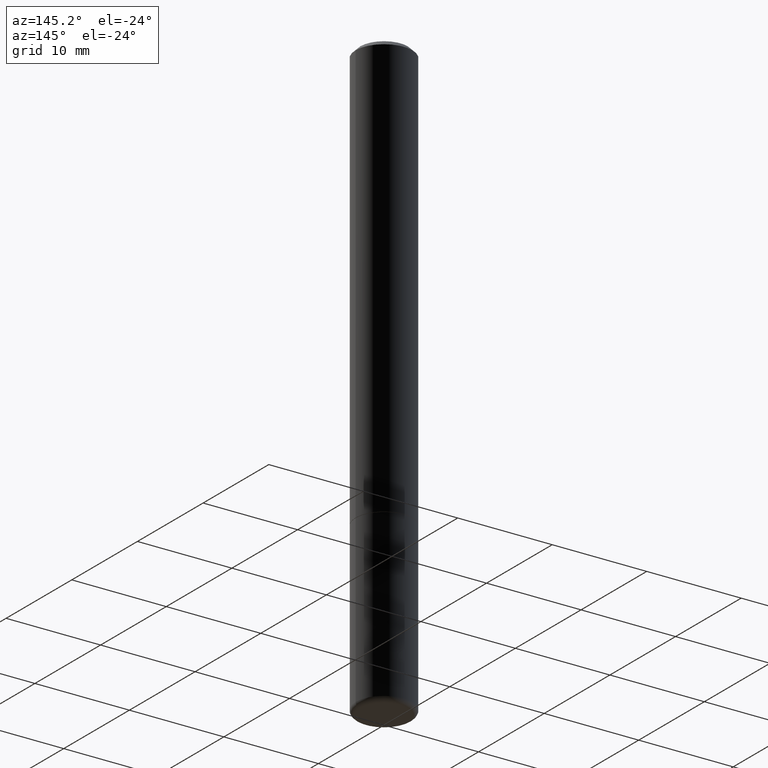
[diagram: clean part render]
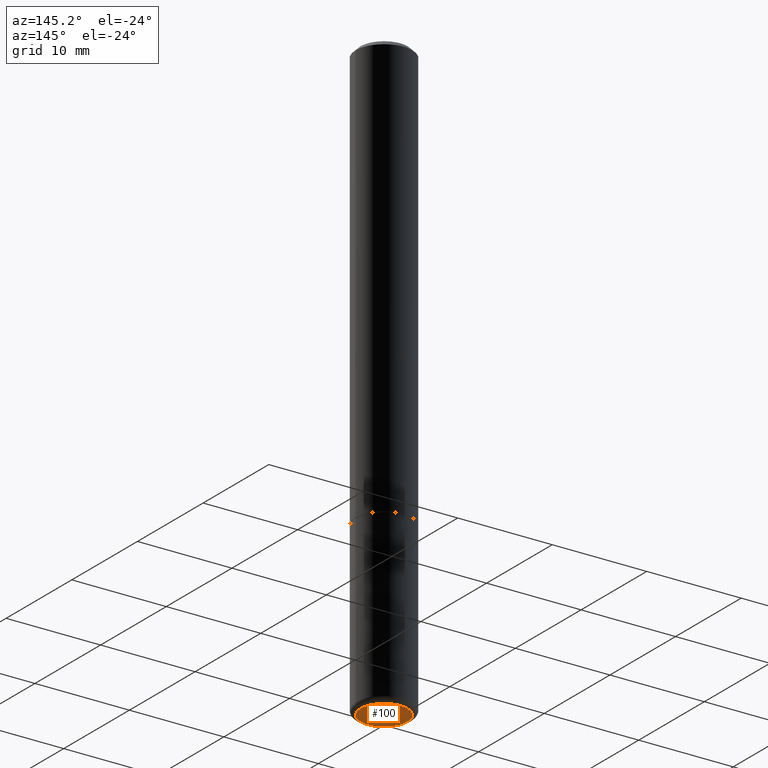
[diagram: same view with one face highlighted and labeled with its STEP entity id]
A machine part, auxiliary view. The second image highlights one B-rep face of the part: STEP entity #100.
In plain terms, the highlighted planar face has unit normal (0, -0, -1).
Its self-contained STEP definition (entity closure, byte-faithful):
#1 = CARTESIAN_POINT ( 'NONE',  ( -0.09840000000000000135, -7.856367562084741595E-15, -2.480300000000000171 ) ) ;
#7 = DIRECTION ( 'NONE',  ( -2.445468806185136597E-29, 3.491481338843145583E-15, 1.000000000000000000 ) ) ;
#51 = AXIS2_PLACEMENT_3D ( 'NONE', #98, #7, #154 ) ;
#91 = PLANE ( 'NONE',  #169 ) ;
#98 = CARTESIAN_POINT ( 'NONE',  ( 6.065496279980994755E-29, -8.659921164732655335E-15, -2.480300000000000171 ) ) ;
#100 = ADVANCED_FACE ( 'NONE', ( #380 ), #91, .T. ) ;
#103 = VERTEX_POINT ( 'NONE', #1 ) ;
#109 = ORIENTED_EDGE ( 'NONE', *, *, #356, .F. ) ;
#121 = CARTESIAN_POINT ( 'NONE',  ( 0.09840000000000000135, -9.347044692216982806E-15, -2.480300000000000171 ) ) ;
#154 = DIRECTION ( 'NONE',  ( 1.000000000000000000, -6.982962677686261977E-15, 0.000000000000000000 ) ) ;
#155 = VERTEX_POINT ( 'NONE', #121 ) ;
#169 = AXIS2_PLACEMENT_3D ( 'NONE', #180, #417, #211 ) ;
#180 = CARTESIAN_POINT ( 'NONE',  ( 6.065496279980994755E-29, -8.659921164732655335E-15, -2.480300000000000171 ) ) ;
#198 = ORIENTED_EDGE ( 'NONE', *, *, #275, .F. ) ;
#211 = DIRECTION ( 'NONE',  ( -1.000000000000000000, 6.982962677686265922E-15, -4.876176775795935793E-29 ) ) ;
#246 = CARTESIAN_POINT ( 'NONE',  ( 6.065496279980994755E-29, -8.659921164732655335E-15, -2.480300000000000171 ) ) ;
#275 = EDGE_CURVE ( 'NONE', #155, #103, #415, .T. ) ;
#279 = AXIS2_PLACEMENT_3D ( 'NONE', #246, #394, #283 ) ;
#283 = DIRECTION ( 'NONE',  ( 1.000000000000000000, -6.982962677686261977E-15, 0.000000000000000000 ) ) ;
#307 = CIRCLE ( 'NONE', #279, 0.09840000000000000135 ) ;
#309 = EDGE_LOOP ( 'NONE', ( #198, #109 ) ) ;
#356 = EDGE_CURVE ( 'NONE', #103, #155, #307, .T. ) ;
#380 = FACE_OUTER_BOUND ( 'NONE', #309, .T. ) ;
#394 = DIRECTION ( 'NONE',  ( -2.445468806185136597E-29, 3.491481338843145583E-15, 1.000000000000000000 ) ) ;
#415 = CIRCLE ( 'NONE', #51, 0.09840000000000000135 ) ;
#417 = DIRECTION ( 'NONE',  ( 2.438088387897960049E-29, -3.491481338843145188E-15, -1.000000000000000000 ) ) ;